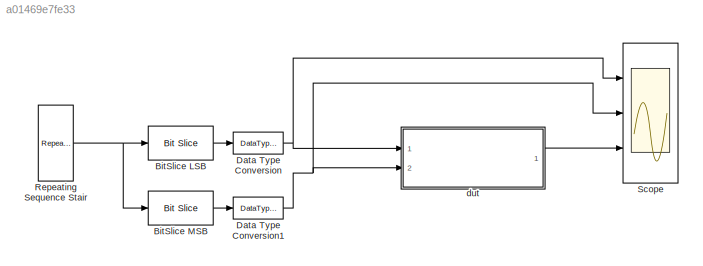
MODEL slx_a01469e7fe33
KIND model
CONFIG AbsTol = auto
CONFIG FixedStep = auto
CONFIG MaxStep = auto
CONFIG MinStep = auto
CONFIG RelTol = 1e-3
CONFIG SampleTimeConstraint = Unconstrained
CONFIG Solver = FixedStepDiscrete
CONFIG SolverMode = SingleTasking
CONFIG SolverName = FixedStepDiscrete
CONFIG StartTime = 0.0
CONFIG StopTime = 100
BLOCK [Reference] BitSlice LSB  REF=hdlsllib/HDL Operations/Bit Slice
  Ports = [1, 1]
  SourceBlock = hdlsllib/HDL Operations/Bit Slice
  SourceType = Bit Slice
BLOCK [Reference] BitSlice MSB  REF=hdlsllib/HDL Operations/Bit Slice
  Ports = [1, 1]
  SourceBlock = hdlsllib/HDL Operations/Bit Slice
  SourceType = Bit Slice
BLOCK [DataTypeConversion] Data Type Conversion
  OutDataTypeStr = boolean
  RndMeth = Floor
  SaturateOnIntegerOverflow = off
BLOCK [DataTypeConversion] Data Type Conversion1
  OutDataTypeStr = boolean
  RndMeth = Floor
  SaturateOnIntegerOverflow = off
BLOCK [Reference] Repeating Sequence Stair  REF=simulink/Sources/Repeating
Sequence
Stair
  Ports = [0, 1]
  SourceBlock = simulink/Sources/Repeating\nSequence\nStair
  SourceType = Repeating Sequence Stair
BLOCK [Scope] Scope
  NumInputPorts = 3
  Ports = [3]
  ScopeSpecificationString = Simulink.scopes.TimeScopeBlockCfg('CurrentConfiguration', extmgr.ConfigurationSet(extmgr.Configuration('Core','General UI',true),extmgr.Configuration('Core','Source UI',true),extmgr.Configuration('Sources','WiredSimulink',true,'DataLoggingSaveFormat','StructureWithTime','DataLoggingDecimation','1','DataLoggingDecimateData',true),extmgr.Configuration('Visuals','Time Domain',true,'SerializedDisplays...<+3076ch>
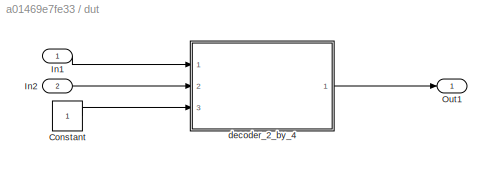
BLOCK [SubSystem] dut
  Ports = [2, 1]
  RequestExecContextInheritance = off
  Variant = off
BLOCK [Constant] dut/Constant
  OutDataTypeStr = boolean
BLOCK [Inport] dut/In1
  IconDisplay = Port number
BLOCK [Inport] dut/In2
  IconDisplay = Port number
  Port = 2
BLOCK [Outport] dut/Out1
  IconDisplay = Port number
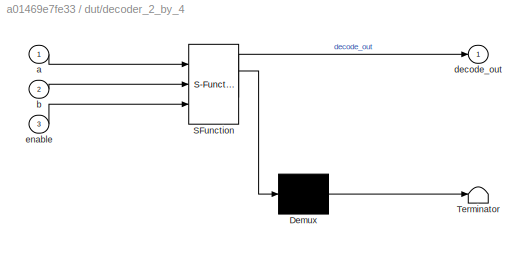
BLOCK [SubSystem] dut/decoder_2_by_4
  ErrorFcn = Stateflow.Translate.translate
  PermitHierarchicalResolution = ExplicitOnly
  Ports = [3, 1]
  RequestExecContextInheritance = off
  SFBlockType = MATLAB Function
  TreatAsAtomicUnit = on
  Variant = off
BLOCK [Demux] dut/decoder_2_by_4/ Demux 
  Outputs = 1
  Ports = [1, 1]
BLOCK [S-Function] dut/decoder_2_by_4/ SFunction 
  EnableBusSupport = on
  FunctionName = sf_sfun
  PortCounts = [3 2]
  Ports = [3, 2]
  SFunctionDeploymentMode = off
  Tag = Stateflow S-Function mlf_decoder 33
BLOCK [Terminator] dut/decoder_2_by_4/ Terminator 
BLOCK [Inport] dut/decoder_2_by_4/a
  IconDisplay = Port number
BLOCK [Inport] dut/decoder_2_by_4/b
  IconDisplay = Port number
  Port = 2
BLOCK [Outport] dut/decoder_2_by_4/decode_out
  IconDisplay = Port number
BLOCK [Inport] dut/decoder_2_by_4/enable
  IconDisplay = Port number
  Port = 3
LINE BitSlice LSB:1 -> Data Type Conversion:1
LINE BitSlice MSB:1 -> Data Type Conversion1:1
NET Data Type Conversion1:1 -> Scope:2, dut:2
NET Data Type Conversion:1 -> Scope:1, dut:1
NET Repeating Sequence Stair:1 -> BitSlice LSB:1, BitSlice MSB:1
LINE dut/Constant:1 -> dut/decoder_2_by_4:3
LINE dut/In1:1 -> dut/decoder_2_by_4:1
LINE dut/In2:1 -> dut/decoder_2_by_4:2
LINE dut/decoder_2_by_4:1 -> dut/Out1:1
LINE dut:1 -> Scope:3
note: NET lines group one-source signal fan-out (src -> all destinations, sorted); 1:1 wires keep LINE
CHART dut/decoder_2_by_4 states=1 transitions=1
  STATE_LABEL 'eML_blk_kernel()'
  STATE_LABEL "SCRIPT:\nfunction decode_out  = fcn(a, b, enable)\n\n% 2 by 4 decoder circuit.\n\nresult_nt = numerictype(0,4,0);\nresult_fm = fimath('OverflowMode', 'wrap', 'RoundMode', 'floor');\ndecode_out = fi(0, result_nt, result_fm);\n\na_bar = ~a;\nb_bar = ~b;\n\n% compute bit0\ndecode_out = bitset(decode_out, 1, ~(enable & a_bar & b_bar));\n% compute bit1\ndecode_out = bitset(decode_out, 2, ~(enable & a_bar & b));\n% com...<+139ch>"
